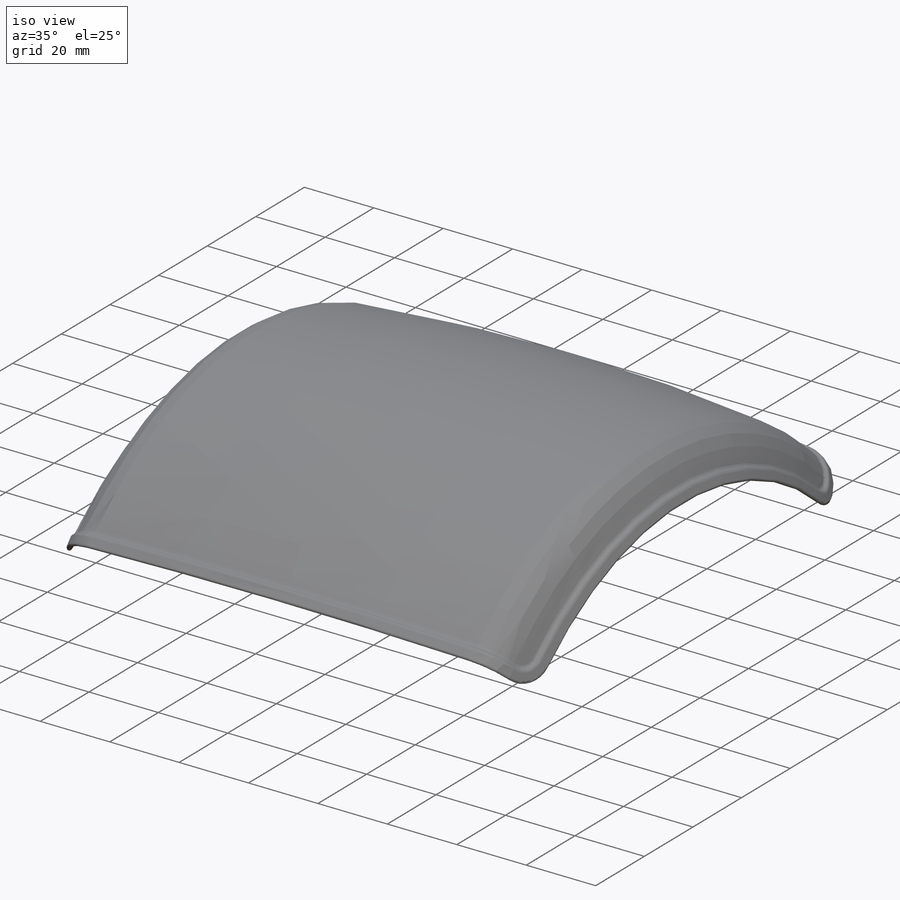
[diagram: iso view]
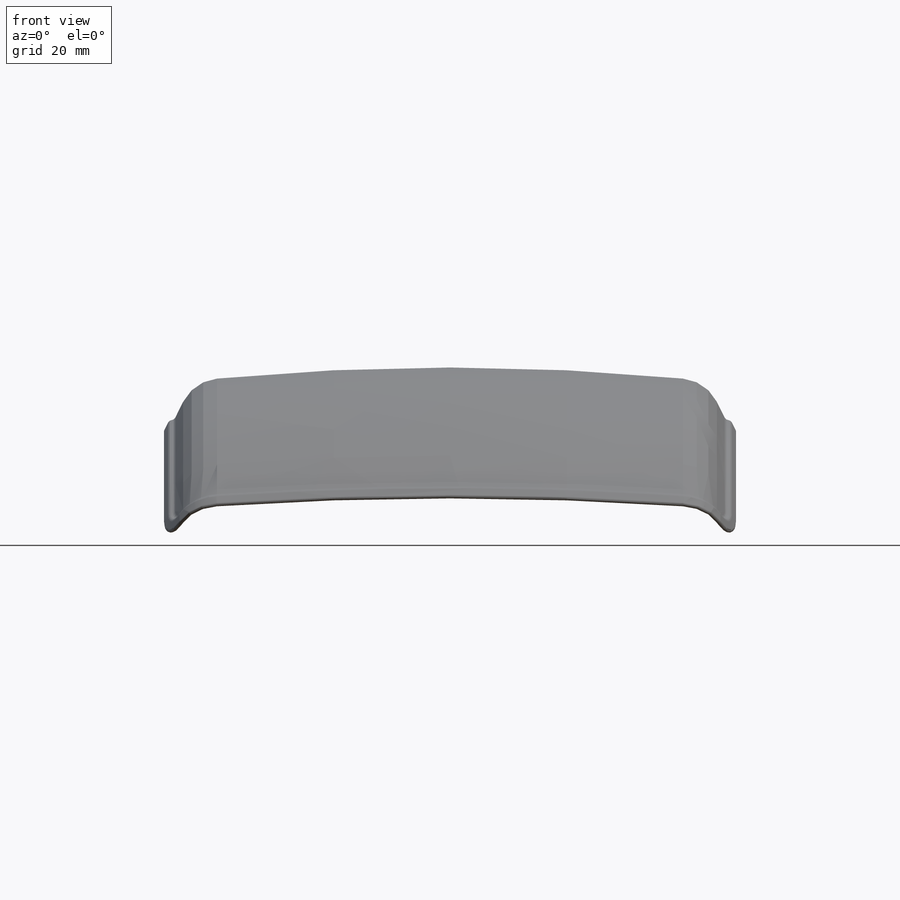
[diagram: front view]
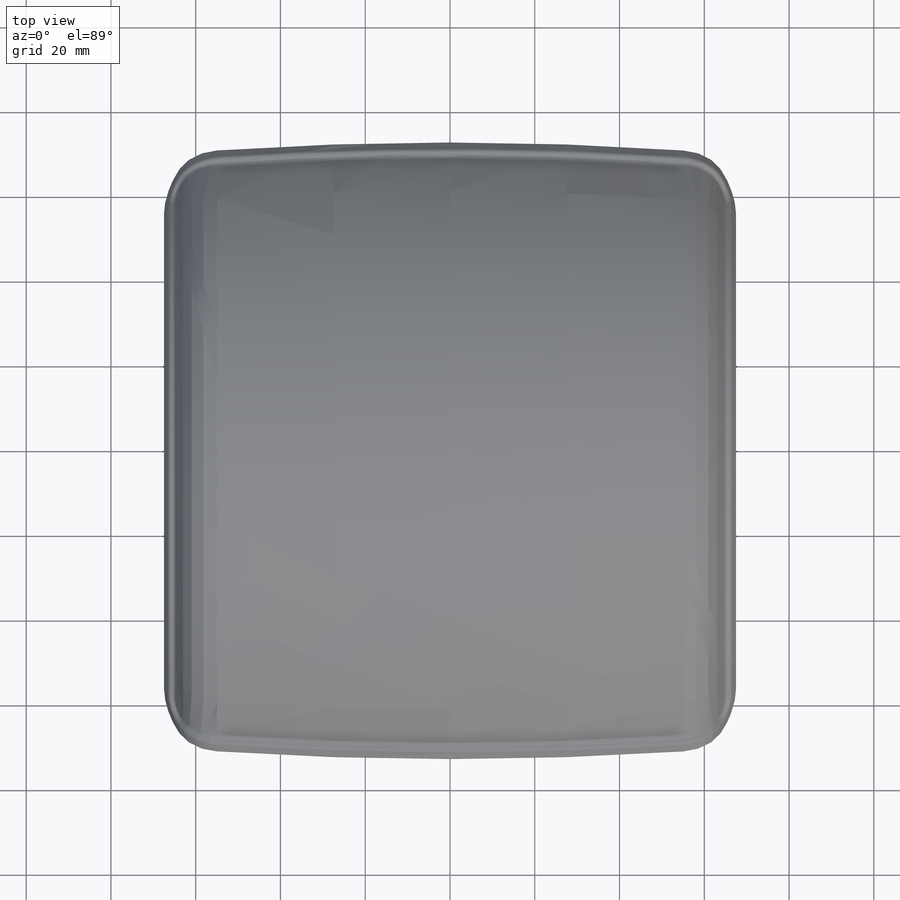
[diagram: top view]
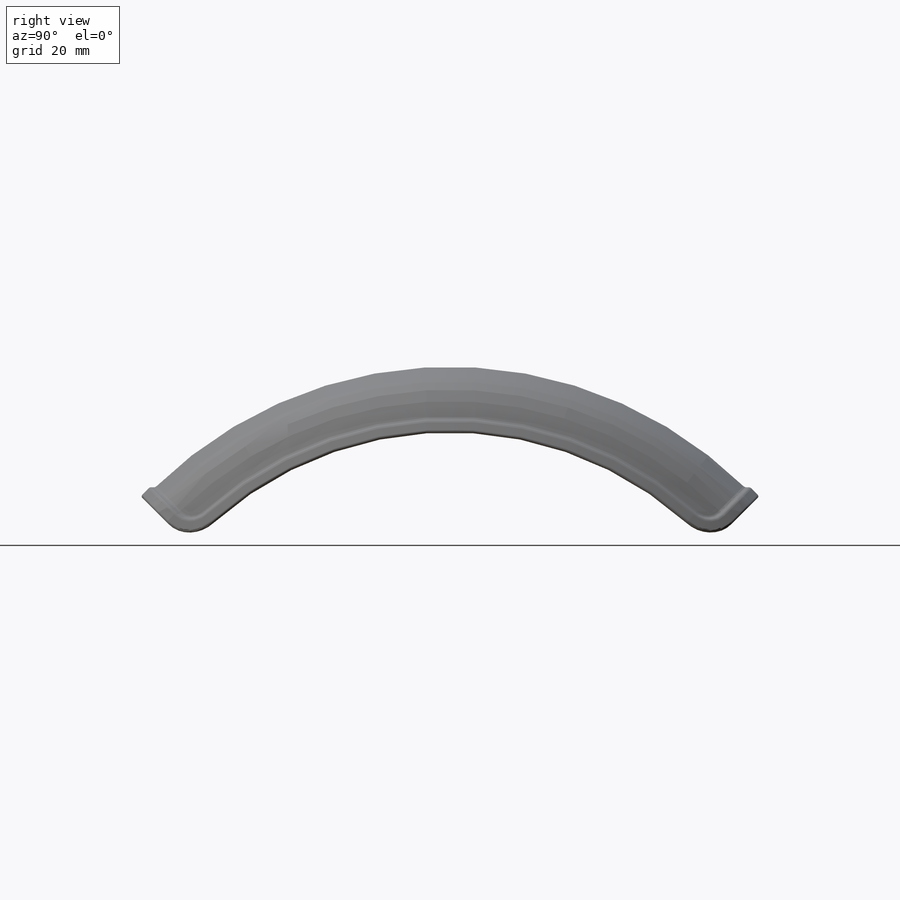
[diagram: right view]
SOLIDWORKS PART (.sldprt)
format: sldprt  version: not decoded by parser v0  size: 696,320 bytes
history: native  units: mm
features: sketch x6, plane x3, mirror x2, material x1, fillet x1, sweep x1 + 1 further entry (+7 scaffold rows collapsed)
feature tree (22):
  scaffold x7  (default folders/planes/origin — collapsed)
  material  "Materiał <nieokreślony>"
  plane  "Przednia"
  plane  "Górna"
  plane  "Prawa"
  "Początek ukł. współrzędnych"
  sketch  "Szkic1"  dims[c1.D1=~59.216217mm c1.D2=~57.38826mm c2.D1=45.0deg c2.D3=1.0mm c2.D4=1.0mm]
  fillet  "Zaokrąglenie1"  Radius=5mm
  sketch  "Szkic2"  dims[D1=~1.106223mm]
  sketch  "Szkic 3D1"
  sweep  "Wyciągnięcie po ścieżce1"
  sketch  "Zaokrąglenie2"  dims[D1=1.0mm]
  sketch  "Zaokrąglenie3"  dims[D1=1.0mm]
  sketch  "Zaokrąglenie4"  dims[D1=1.0mm]
  mirror  "Lustro2"
  mirror  "Lustro3"
decode coverage: 6 of 10 modeling features carry decoded parameters; 1 rows unclassified (native names shown)
note: ~ marks probable driven/reference dimensions
note: suppression state not decoded; provenance and decode notes live in map.json
